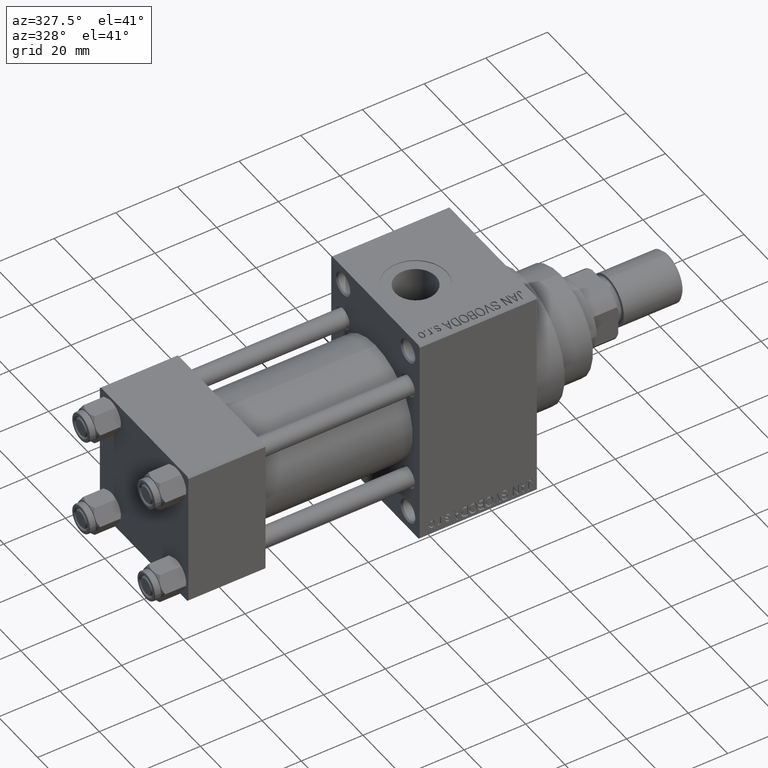
[diagram: clean part render]
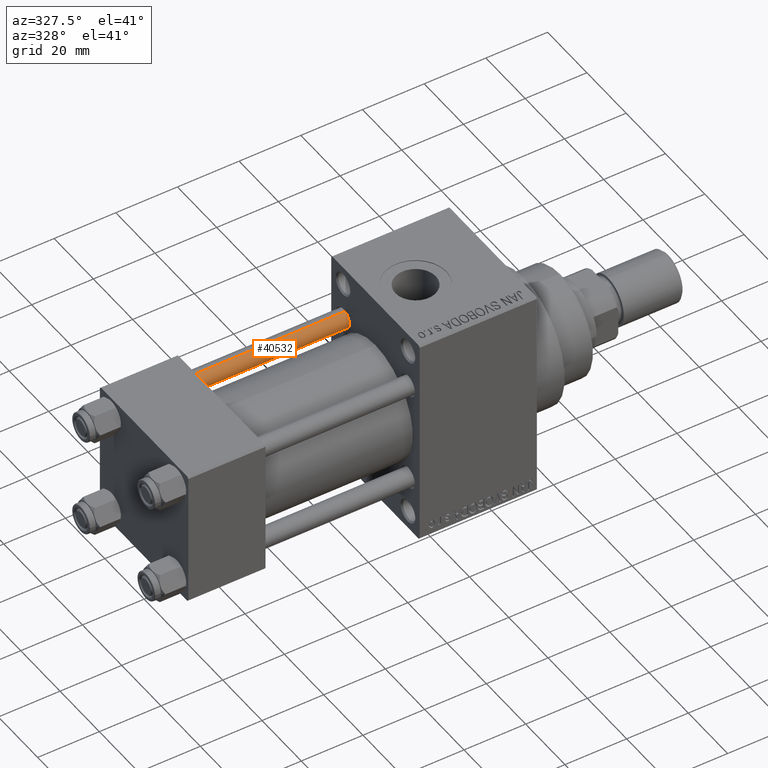
[diagram: same view with one face highlighted and labeled with its STEP entity id]
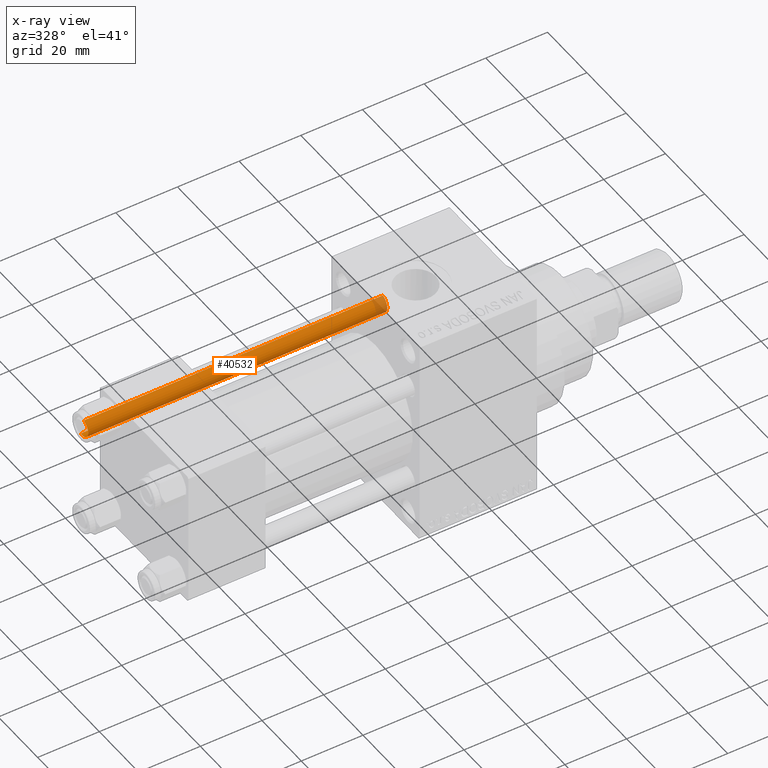
[diagram: x-ray of the same camera — body ghosted, the highlighted face saturated]
A machine part, auxiliary view. The second image highlights one B-rep face of the part: STEP entity #40532.
The next image is the same camera in x-ray: the body ghosted, the highlighted face saturated — about 4% of this face is hidden behind the body in this view.
In plain terms, the highlighted cylindrical surface (edge-blend (fillet) strip) has radius 3 mm, axis along (-1, -0, 0).
Its self-contained STEP definition (entity closure, byte-faithful):
#61 = DIRECTION ( 'NONE',  ( -1.000000000000000000, 0.000000000000000000, 0.000000000000000000 ) ) ;
#802 = CYLINDRICAL_SURFACE ( 'NONE', #44399, 3.000000000000000444 ) ;
#1056 = DIRECTION ( 'NONE',  ( -0.000000000000000000, -0.000000000000000000, 1.000000000000000000 ) ) ;
#5654 = VERTEX_POINT ( 'NONE', #23984 ) ;
#5759 = CARTESIAN_POINT ( 'NONE',  ( 0.000000000000000000, 0.000000000000000000, 0.5000000000000281997 ) ) ;
#5828 = VERTEX_POINT ( 'NONE', #17529 ) ;
#5888 = DIRECTION ( 'NONE',  ( 1.000000000000000000, 0.000000000000000000, 0.000000000000000000 ) ) ;
#13781 = ORIENTED_EDGE ( 'NONE', *, *, #27093, .T. ) ;
#13995 = CIRCLE ( 'NONE', #38528, 3.000000000000000444 ) ;
#15927 = CARTESIAN_POINT ( 'NONE',  ( 0.000000000000000000, 0.000000000000000000, 98.00000000000000000 ) ) ;
#16071 = CARTESIAN_POINT ( 'NONE',  ( 3.000000000000000444, 3.673940397442060361E-16, 0.5000000000000281997 ) ) ;
#16810 = EDGE_CURVE ( 'NONE', #5654, #25200, #21093, .T. ) ;
#17529 = CARTESIAN_POINT ( 'NONE',  ( 3.000000000000000444, 3.673940397442060361E-16, 97.50000000000001421 ) ) ;
#17701 = EDGE_LOOP ( 'NONE', ( #19794, #43037, #32491, #13781 ) ) ;
#17714 = VECTOR ( 'NONE', #47596, 1000.000000000000000 ) ;
#18580 = AXIS2_PLACEMENT_3D ( 'NONE', #32377, #39831, #5888 ) ;
#18902 = FACE_OUTER_BOUND ( 'NONE', #17701, .T. ) ;
#19771 = EDGE_CURVE ( 'NONE', #5828, #5654, #34414, .T. ) ;
#19794 = ORIENTED_EDGE ( 'NONE', *, *, #45261, .F. ) ;
#21093 = LINE ( 'NONE', #44128, #17714 ) ;
#23984 = CARTESIAN_POINT ( 'NONE',  ( -3.000000000000000444, 0.000000000000000000, 97.50000000000001421 ) ) ;
#24205 = CARTESIAN_POINT ( 'NONE',  ( -3.000000000000000444, 0.000000000000000000, 0.5000000000000281997 ) ) ;
#25200 = VERTEX_POINT ( 'NONE', #24205 ) ;
#27073 = DIRECTION ( 'NONE',  ( -0.000000000000000000, -0.000000000000000000, -1.000000000000000000 ) ) ;
#27093 = EDGE_CURVE ( 'NONE', #25200, #28599, #13995, .T. ) ;
#27487 = CARTESIAN_POINT ( 'NONE',  ( 3.000000000000000444, 3.673940397442060361E-16, 98.00000000000000000 ) ) ;
#28599 = VERTEX_POINT ( 'NONE', #16071 ) ;
#31539 = DIRECTION ( 'NONE',  ( 1.000000000000000000, 0.000000000000000000, 0.000000000000000000 ) ) ;
#32377 = CARTESIAN_POINT ( 'NONE',  ( 0.000000000000000000, 0.000000000000000000, 97.50000000000001421 ) ) ;
#32491 = ORIENTED_EDGE ( 'NONE', *, *, #16810, .T. ) ;
#34414 = CIRCLE ( 'NONE', #18580, 3.000000000000000444 ) ;
#36415 = VECTOR ( 'NONE', #44674, 1000.000000000000000 ) ;
#38528 = AXIS2_PLACEMENT_3D ( 'NONE', #5759, #1056, #31539 ) ;
#39831 = DIRECTION ( 'NONE',  ( 0.000000000000000000, 0.000000000000000000, -1.000000000000000000 ) ) ;
#40532 = ADVANCED_FACE ( 'NONE', ( #18902 ), #802, .T. ) ;
#42114 = LINE ( 'NONE', #27487, #36415 ) ;
#43037 = ORIENTED_EDGE ( 'NONE', *, *, #19771, .T. ) ;
#44128 = CARTESIAN_POINT ( 'NONE',  ( -3.000000000000000444, 0.000000000000000000, 98.00000000000000000 ) ) ;
#44399 = AXIS2_PLACEMENT_3D ( 'NONE', #15927, #27073, #61 ) ;
#44674 = DIRECTION ( 'NONE',  ( -0.000000000000000000, -0.000000000000000000, -1.000000000000000000 ) ) ;
#45261 = EDGE_CURVE ( 'NONE', #5828, #28599, #42114, .T. ) ;
#47596 = DIRECTION ( 'NONE',  ( -0.000000000000000000, -0.000000000000000000, -1.000000000000000000 ) ) ;